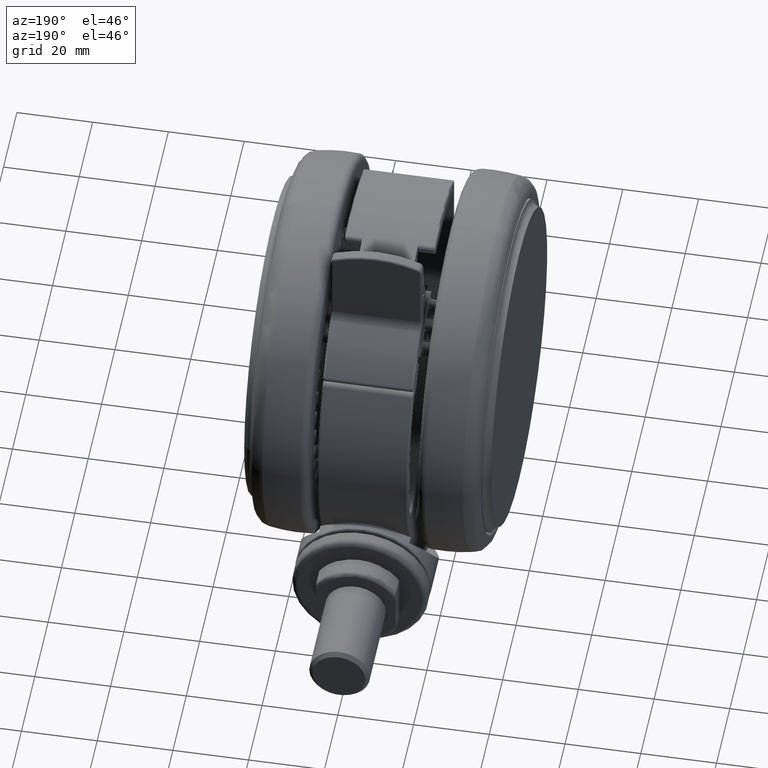
[diagram: clean part render]
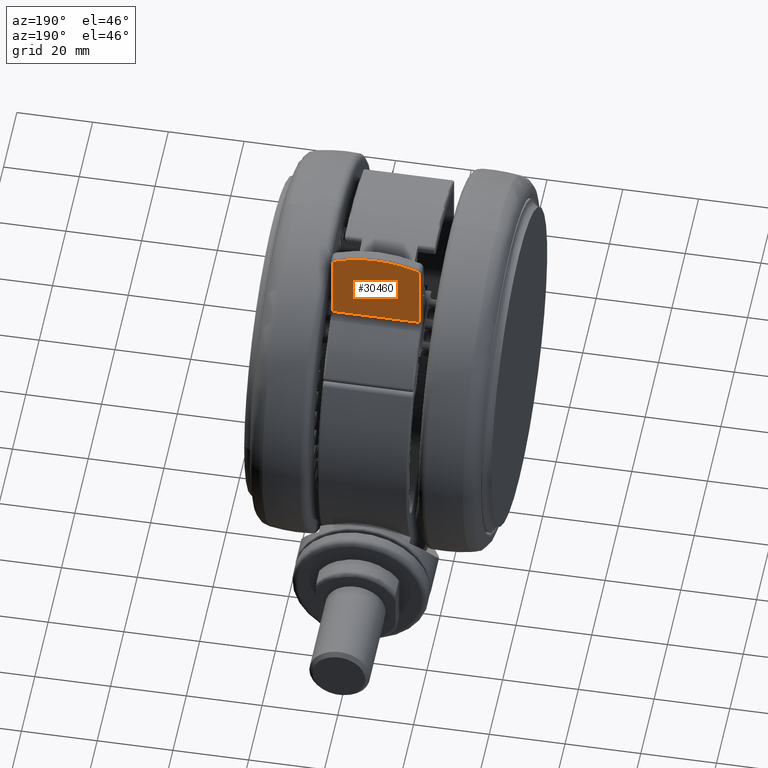
[diagram: same view with one face highlighted and labeled with its STEP entity id]
A machine part, auxiliary view. The second image highlights one B-rep face of the part: STEP entity #30460.
In plain terms, the highlighted planar face has unit normal (0, -1, -0.0036).
Its self-contained STEP definition (entity closure, byte-faithful):
#541 = VECTOR ( 'NONE', #69311, 999.9999999999998900 ) ;
#546 = DIRECTION ( 'NONE',  ( -0.9998615448069980700, 0.01664004856252959300, -0.0000000000000000000 ) ) ;
#929 = CARTESIAN_POINT ( 'NONE',  ( -30.44259294988857400, -59.92477131755895000, -22.09999999999991300 ) ) ;
#1406 = VERTEX_POINT ( 'NONE', #79171 ) ;
#1560 = PLANE ( 'NONE',  #33951 ) ;
#2142 = CARTESIAN_POINT ( 'NONE',  ( -30.49259159335816300, -62.92907269984772300, -32.59999999999991600 ) ) ;
#3081 = EDGE_CURVE ( 'NONE', #25922, #59564, #67046, .T. ) ;
#6705 = AXIS2_PLACEMENT_3D ( 'NONE', #9136, #53342, #15447 ) ;
#7288 = DIRECTION ( 'NONE',  ( -0.01664004856253082900, -0.9998615448069980700, 0.0000000000000000000 ) ) ;
#7657 = CARTESIAN_POINT ( 'NONE',  ( -30.12037051677677000, -40.56318000176651900, -44.59999999999991600 ) ) ;
#7924 = DIRECTION ( 'NONE',  ( -0.01664004856252959300, -0.9998615448069980700, 0.0000000000000000000 ) ) ;
#8151 = ORIENTED_EDGE ( 'NONE', *, *, #78348, .T. ) ;
#9084 = CARTESIAN_POINT ( 'NONE',  ( -30.12037051677677000, -40.56318000176651900, -44.09999999999991600 ) ) ;
#9136 = CARTESIAN_POINT ( 'NONE',  ( -30.00171016076354400, -33.43315712804128000, -32.59999999999991600 ) ) ;
#9573 = ORIENTED_EDGE ( 'NONE', *, *, #3081, .F. ) ;
#10601 = DIRECTION ( 'NONE',  ( 0.0000000000000000000, 0.0000000000000000000, -1.000000000000000000 ) ) ;
#13400 = EDGE_CURVE ( 'NONE', #1406, #75873, #43882, .T. ) ;
#15447 = DIRECTION ( 'NONE',  ( -0.01664004856252955500, -0.9998615448069980700, 6.115635305138573100E-015 ) ) ;
#21121 = EDGE_CURVE ( 'NONE', #72919, #59564, #27567, .T. ) ;
#23362 = CARTESIAN_POINT ( 'NONE',  ( -30.44259294988857400, -59.92477131755895000, -44.09999999999991600 ) ) ;
#23528 = CIRCLE ( 'NONE', #6705, 29.50000000000000400 ) ;
#23823 = VERTEX_POINT ( 'NONE', #49874 ) ;
#24987 = AXIS2_PLACEMENT_3D ( 'NONE', #929, #45154, #7288 ) ;
#25805 = FACE_OUTER_BOUND ( 'NONE', #78448, .T. ) ;
#25922 = VERTEX_POINT ( 'NONE', #80682 ) ;
#27047 = VECTOR ( 'NONE', #10601, 1000.000000000000000 ) ;
#27567 = CIRCLE ( 'NONE', #72062, 29.50000000000000400 ) ;
#29382 = CARTESIAN_POINT ( 'NONE',  ( -30.14563438842651200, -42.08122687768695900, -44.09999999999991600 ) ) ;
#30460 = ADVANCED_FACE ( 'NONE', ( #25805 ), #1560, .F. ) ;
#31474 = CARTESIAN_POINT ( 'NONE',  ( -30.44259294988857400, -59.92477131755895000, -43.09999999999991600 ) ) ;
#33951 = AXIS2_PLACEMENT_3D ( 'NONE', #7657, #45803, #7924 ) ;
#36082 = EDGE_CURVE ( 'NONE', #75873, #42600, #63109, .T. ) ;
#37398 = EDGE_CURVE ( 'NONE', #23823, #42600, #81609, .T. ) ;
#37863 = DIRECTION ( 'NONE',  ( -0.01664004856253082900, -0.9998615448069980700, 0.0000000000000000000 ) ) ;
#38401 = CARTESIAN_POINT ( 'NONE',  ( -30.00171016076354400, -33.43315712804128000, -32.59999999999991600 ) ) ;
#42332 = ORIENTED_EDGE ( 'NONE', *, *, #13400, .T. ) ;
#42397 = VECTOR ( 'NONE', #46959, 999.9999999999998900 ) ;
#42600 = VERTEX_POINT ( 'NONE', #23362 ) ;
#43882 = LINE ( 'NONE', #29382, #27047 ) ;
#44769 = DIRECTION ( 'NONE',  ( -0.01664004856252955500, -0.9998615448069980700, 0.0000000000000000000 ) ) ;
#45154 = DIRECTION ( 'NONE',  ( 0.9998615448069980700, -0.01664004856252959300, 0.0000000000000000000 ) ) ;
#45803 = DIRECTION ( 'NONE',  ( 0.9998615448069980700, -0.01664004856252959300, 0.0000000000000000000 ) ) ;
#46936 = ORIENTED_EDGE ( 'NONE', *, *, #21121, .T. ) ;
#46959 = DIRECTION ( 'NONE',  ( -0.01664004856252959300, -0.9998615448069981800, -0.0000000000000000000 ) ) ;
#49699 = ORIENTED_EDGE ( 'NONE', *, *, #36082, .T. ) ;
#49874 = CARTESIAN_POINT ( 'NONE',  ( -30.45806252143681900, -60.85430163999813400, -43.46842105263149800 ) ) ;
#53342 = DIRECTION ( 'NONE',  ( -0.9998615448069980700, 0.01664004856252959300, -0.0000000000000000000 ) ) ;
#53764 = ORIENTED_EDGE ( 'NONE', *, *, #37398, .F. ) ;
#58156 = ORIENTED_EDGE ( 'NONE', *, *, #59880, .T. ) ;
#59564 = VERTEX_POINT ( 'NONE', #80957 ) ;
#59880 = EDGE_CURVE ( 'NONE', #23823, #72919, #23528, .T. ) ;
#63109 = LINE ( 'NONE', #9084, #42397 ) ;
#67046 = CIRCLE ( 'NONE', #24987, 0.9999999999999977800 ) ;
#69311 = DIRECTION ( 'NONE',  ( 0.01664004856252959300, 0.9998615448069981800, 0.0000000000000000000 ) ) ;
#69712 = LINE ( 'NONE', #75637, #541 ) ;
#72023 = CARTESIAN_POINT ( 'NONE',  ( -30.14563438842651200, -42.08122687768695900, -44.09999999999991600 ) ) ;
#72062 = AXIS2_PLACEMENT_3D ( 'NONE', #38401, #546, #44769 ) ;
#72919 = VERTEX_POINT ( 'NONE', #2142 ) ;
#73004 = AXIS2_PLACEMENT_3D ( 'NONE', #31474, #75649, #37863 ) ;
#75637 = CARTESIAN_POINT ( 'NONE',  ( -30.12037051677677000, -40.56318000176651900, -21.09999999999991300 ) ) ;
#75649 = DIRECTION ( 'NONE',  ( 0.9998615448069980700, -0.01664004856252959300, 0.0000000000000000000 ) ) ;
#75873 = VERTEX_POINT ( 'NONE', #72023 ) ;
#78348 = EDGE_CURVE ( 'NONE', #25922, #1406, #69712, .T. ) ;
#78448 = EDGE_LOOP ( 'NONE', ( #8151, #42332, #49699, #53764, #58156, #46936, #9573 ) ) ;
#79171 = CARTESIAN_POINT ( 'NONE',  ( -30.14563438842651200, -42.08122687768695900, -21.09999999999991300 ) ) ;
#80682 = CARTESIAN_POINT ( 'NONE',  ( -30.44259294988857400, -59.92477131755895000, -21.09999999999991300 ) ) ;
#80957 = CARTESIAN_POINT ( 'NONE',  ( -30.45806252143681900, -60.85430163999813400, -21.73157894736833000 ) ) ;
#81609 = CIRCLE ( 'NONE', #73004, 0.9999999999999977800 ) ;